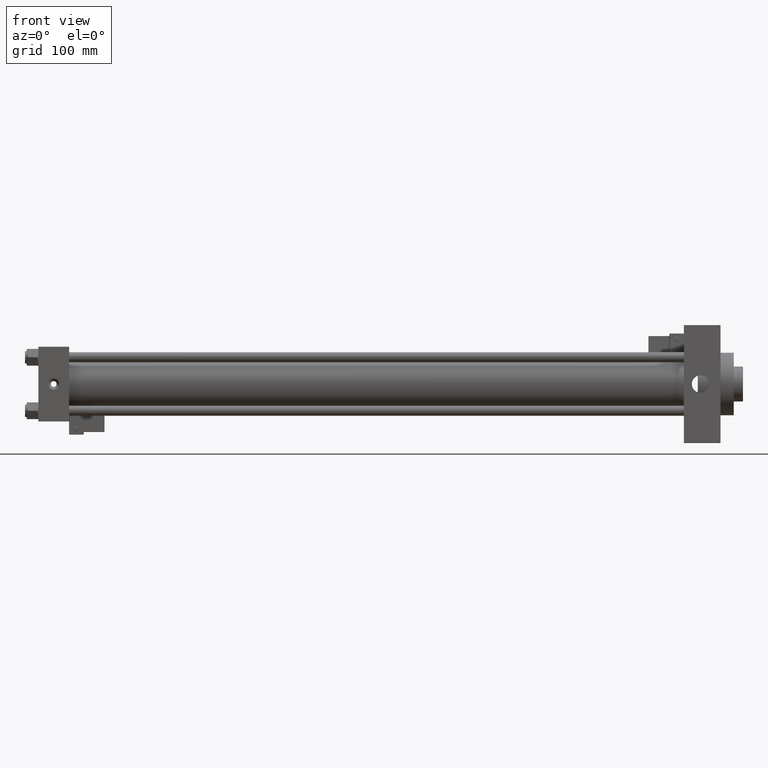
[diagram: clean part render]
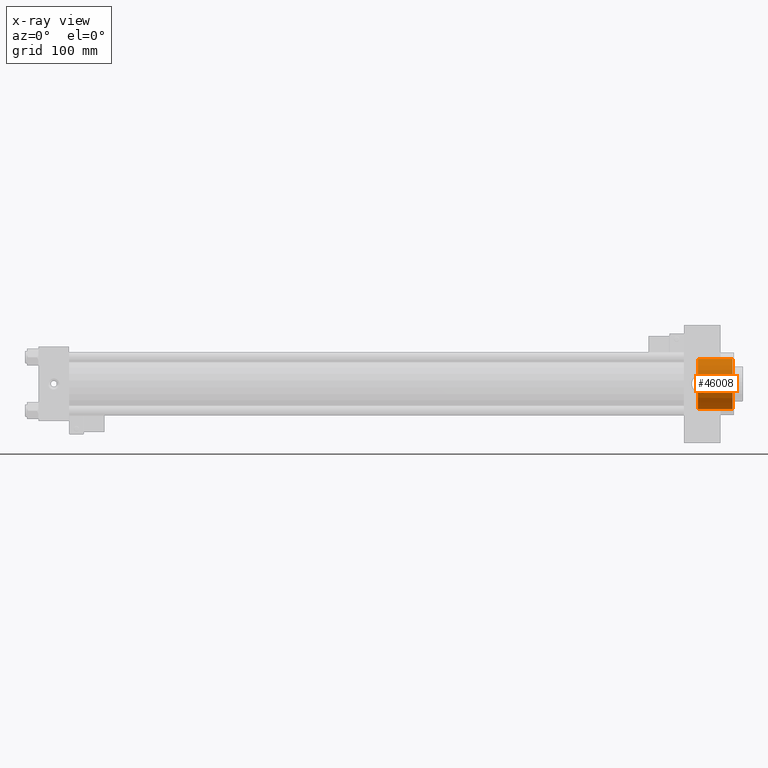
[diagram: x-ray — body ghosted, one internal face saturated and labeled with its STEP entity id]
A machine part, front view, then the same camera in x-ray: the body is ghosted and one INTERNAL B-rep face — a face not visible from any outside direction — is saturated and labeled: STEP entity #46008.
In plain terms, the highlighted cylindrical surface (edge-blend (fillet) strip) has radius 30 mm, axis along (1, 0, 0).
Its self-contained STEP definition (entity closure, byte-faithful):
#264 = CARTESIAN_POINT ( 'NONE',  ( 792.7400000000001228, -28.29836037653062775, 9.960060240781748675 ) ) ;
#589 = VERTEX_POINT ( 'NONE', #49616 ) ;
#917 = CARTESIAN_POINT ( 'NONE',  ( 794.8822926212899347, -28.10995553180400819, -10.48000000000005372 ) ) ;
#1570 = CARTESIAN_POINT ( 'NONE',  ( 792.7400000000001228, -28.29836037653063130, -9.960060240781743346 ) ) ;
#2111 = CARTESIAN_POINT ( 'NONE',  ( 796.6875923004627111, -28.11626763150321295, 10.46311650470943988 ) ) ;
#2248 = CIRCLE ( 'NONE', #14787, 30.00000000000000000 ) ;
#2876 = CARTESIAN_POINT ( 'NONE',  ( 801.2538723618133645, -28.59517209534080706, 9.074427182106752809 ) ) ;
#2941 = EDGE_CURVE ( 'NONE', #36929, #32891, #48526, .T. ) ;
#3135 = CARTESIAN_POINT ( 'NONE',  ( 802.9226840027822618, -28.94609101070396662, 7.897476117125417083 ) ) ;
#3151 = VERTEX_POINT ( 'NONE', #19456 ) ;
#3787 = EDGE_CURVE ( 'NONE', #36929, #32770, #10101, .T. ) ;
#4732 = CARTESIAN_POINT ( 'NONE',  ( 795.4514479423002058, -28.10995553180400819, 10.48000000000004661 ) ) ;
#5418 = CARTESIAN_POINT ( 'NONE',  ( 792.7400000000001228, 0.000000000000000000, 0.000000000000000000 ) ) ;
#5666 = EDGE_CURVE ( 'NONE', #32770, #589, #12850, .T. ) ;
#6562 = CARTESIAN_POINT ( 'NONE',  ( 800.6483450916582569, -28.49013521307114161, 9.399004808299611824 ) ) ;
#6808 = CARTESIAN_POINT ( 'NONE',  ( 804.5146658568487510, -29.37067223596217502, 6.119359129451043877 ) ) ;
#7060 = CARTESIAN_POINT ( 'NONE',  ( 806.1400674918413642, -29.88267782535193007, 2.735376480645566044 ) ) ;
#7320 = CARTESIAN_POINT ( 'NONE',  ( 797.3845237662673071, -28.13600843276155672, -10.41084356096760644 ) ) ;
#7849 = CARTESIAN_POINT ( 'NONE',  ( 796.0000000000000000, -28.10995553180400819, 10.48000000000004484 ) ) ;
#7971 = DIRECTION ( 'NONE',  ( 1.000000000000000000, -0.000000000000000000, -0.000000000000000000 ) ) ;
#8318 = ORIENTED_EDGE ( 'NONE', *, *, #50851, .T. ) ;
#8798 = CARTESIAN_POINT ( 'NONE',  ( 792.7400000000001228, -28.29836037653063130, -9.960060240781743346 ) ) ;
#9194 = CARTESIAN_POINT ( 'NONE',  ( 792.7400000000001228, 0.000000000000000000, -30.00000000000000000 ) ) ;
#9330 = CARTESIAN_POINT ( 'NONE',  ( 834.5000000000001137, 0.000000000000000000, 0.000000000000000000 ) ) ;
#10101 = CIRCLE ( 'NONE', #39407, 30.00000000000000000 ) ;
#10228 = CARTESIAN_POINT ( 'NONE',  ( 803.8917107446759474, -29.19304966441861637, -6.928961920144646847 ) ) ;
#10371 = ORIENTED_EDGE ( 'NONE', *, *, #18772, .F. ) ;
#10529 = EDGE_LOOP ( 'NONE', ( #10371, #50017, #47476, #30568, #12218, #38701, #21636, #8318 ) ) ;
#10736 = CARTESIAN_POINT ( 'NONE',  ( 806.2088621083211137, -29.90629404900236565, -2.393471372070398395 ) ) ;
#10984 = CARTESIAN_POINT ( 'NONE',  ( 805.9399912239312016, -29.81458687334005475, 3.392117035502160594 ) ) ;
#11067 = AXIS2_PLACEMENT_3D ( 'NONE', #17163, #33181, #20321 ) ;
#11312 = AXIS2_PLACEMENT_3D ( 'NONE', #9330, #33716, #25578 ) ;
#11886 = CARTESIAN_POINT ( 'NONE',  ( 792.7400000000001228, 3.673940397442059178E-15, 30.00000000000000000 ) ) ;
#12218 = ORIENTED_EDGE ( 'NONE', *, *, #3787, .F. ) ;
#12850 = LINE ( 'NONE', #9194, #33610 ) ;
#13010 = DIRECTION ( 'NONE',  ( 0.000000000000000000, 0.000000000000000000, -1.000000000000000000 ) ) ;
#13786 = VECTOR ( 'NONE', #7971, 1000.000000000000000 ) ;
#14152 = CARTESIAN_POINT ( 'NONE',  ( 799.7170611001099587, -28.35291915705128218, -9.804662585683500353 ) ) ;
#14403 = CARTESIAN_POINT ( 'NONE',  ( 806.4801199113429675, -30.00004188902683566, 0.3416054811791464640 ) ) ;
#14656 = CARTESIAN_POINT ( 'NONE',  ( 800.6664021070158697, -28.48775938261395524, -9.408788335372481271 ) ) ;
#14787 = AXIS2_PLACEMENT_3D ( 'NONE', #5418, #29027, #13010 ) ;
#14907 = CARTESIAN_POINT ( 'NONE',  ( 802.3950967947523623, -28.82709093977712556, -8.309601500369883098 ) ) ;
#15468 = EDGE_CURVE ( 'NONE', #51007, #19437, #47326, .T. ) ;
#16255 = EDGE_CURVE ( 'NONE', #19437, #589, #33946, .T. ) ;
#16901 = CARTESIAN_POINT ( 'NONE',  ( 796.0000000000000000, -28.10995553180401174, -10.48000000000004128 ) ) ;
#16913 = CYLINDRICAL_SURFACE ( 'NONE', #11067, 30.00000000000000000 ) ;
#17045 = DIRECTION ( 'NONE',  ( 1.000000000000000000, -0.000000000000000000, -0.000000000000000000 ) ) ;
#17163 = CARTESIAN_POINT ( 'NONE',  ( 792.7400000000001228, 0.000000000000000000, 0.000000000000000000 ) ) ;
#17451 = VERTEX_POINT ( 'NONE', #7849 ) ;
#18077 = CARTESIAN_POINT ( 'NONE',  ( 796.3438730021885021, -28.10995553180400464, 10.48000000000004306 ) ) ;
#18337 = CARTESIAN_POINT ( 'NONE',  ( 804.3114165177490804, -29.31220912400724643, 6.392798821075973414 ) ) ;
#18772 = EDGE_CURVE ( 'NONE', #51007, #3151, #2248, .T. ) ;
#18838 = CARTESIAN_POINT ( 'NONE',  ( 805.0902213596349384, -29.54095946462918221, -5.260287319037081133 ) ) ;
#19094 = CARTESIAN_POINT ( 'NONE',  ( 799.3905241761369780, -28.31178435317265141, -9.922416159315423201 ) ) ;
#19437 = VERTEX_POINT ( 'NONE', #21520 ) ;
#19456 = CARTESIAN_POINT ( 'NONE',  ( 792.7400000000001228, -28.29836037653062775, 9.960060240781748675 ) ) ;
#20118 = CARTESIAN_POINT ( 'NONE',  ( 796.0000000000000000, -28.10995553180401174, -10.48000000000004128 ) ) ;
#20321 = DIRECTION ( 'NONE',  ( 0.000000000000000000, 0.000000000000000000, -1.000000000000000000 ) ) ;
#20701 = CARTESIAN_POINT ( 'NONE',  ( 794.9024063244626177, -28.12603194202298695, 10.43719296280634090 ) ) ;
#21397 = DIRECTION ( 'NONE',  ( 1.000000000000000000, 0.000000000000000000, 0.000000000000000000 ) ) ;
#21520 = CARTESIAN_POINT ( 'NONE',  ( 834.5000000000001137, 3.673940397442059178E-15, 30.00000000000000000 ) ) ;
#21636 = ORIENTED_EDGE ( 'NONE', *, *, #29056, .T. ) ;
#22267 = CARTESIAN_POINT ( 'NONE',  ( 806.3429318193840345, -29.95232553474090409, 1.724057622897193109 ) ) ;
#22527 = CARTESIAN_POINT ( 'NONE',  ( 799.3944568409846170, -28.30729626029970802, 9.938490869674316386 ) ) ;
#22777 = CARTESIAN_POINT ( 'NONE',  ( 806.3942240619414861, -29.97012602456188901, 1.382554006488363685 ) ) ;
#23034 = CARTESIAN_POINT ( 'NONE',  ( 805.0829805892811919, -29.53877363973343861, 5.271871285478050062 ) ) ;
#24178 = B_SPLINE_CURVE_WITH_KNOTS ( 'NONE', 3,
 ( #25153, #4732, #20701, #36723, #36196, #264 ),
 .UNSPECIFIED., .F., .F.,
 ( 4, 2, 4 ),
 ( 0.03634970425994741433, 0.03799692195981778375, 0.03964413965968816012 ),
 .UNSPECIFIED. ) ;
#24775 = CARTESIAN_POINT ( 'NONE',  ( 793.7960088294358911, -28.17670708149322678, -10.30569959443393913 ) ) ;
#25153 = CARTESIAN_POINT ( 'NONE',  ( 796.0000000000000000, -28.10995553180400819, 10.48000000000004484 ) ) ;
#25578 = DIRECTION ( 'NONE',  ( 0.000000000000000000, 0.000000000000000000, -1.000000000000000000 ) ) ;
#26735 = CARTESIAN_POINT ( 'NONE',  ( 806.4630151315454896, -29.99405350600729747, 0.6904084209729872690 ) ) ;
#27241 = CARTESIAN_POINT ( 'NONE',  ( 798.7402809744362457, -28.23506111628059756, 10.13915124372667442 ) ) ;
#29027 = DIRECTION ( 'NONE',  ( 1.000000000000000000, 0.000000000000000000, 0.000000000000000000 ) ) ;
#29056 = EDGE_CURVE ( 'NONE', #32891, #17451, #33365, .T. ) ;
#30162 = CARTESIAN_POINT ( 'NONE',  ( 803.6452155958481853, -29.13013352623691077, 7.176134000890692199 ) ) ;
#30568 = ORIENTED_EDGE ( 'NONE', *, *, #5666, .F. ) ;
#30673 = CARTESIAN_POINT ( 'NONE',  ( 801.2662955552276571, -28.59360380551412462, -9.086475383822252283 ) ) ;
#30926 = CARTESIAN_POINT ( 'NONE',  ( 803.1731662640727336, -29.00983069254147040, -7.647933622233215267 ) ) ;
#31182 = CARTESIAN_POINT ( 'NONE',  ( 798.7290047839929912, -28.24020088778829773, -10.12435328880598640 ) ) ;
#32731 = CARTESIAN_POINT ( 'NONE',  ( 792.7400000000001228, 0.000000000000000000, 0.000000000000000000 ) ) ;
#32770 = VERTEX_POINT ( 'NONE', #42473 ) ;
#32891 = VERTEX_POINT ( 'NONE', #20118 ) ;
#33181 = DIRECTION ( 'NONE',  ( 1.000000000000000000, -0.000000000000000000, -0.000000000000000000 ) ) ;
#33365 = B_SPLINE_CURVE_WITH_KNOTS ( 'NONE', 3,
 ( #38797, #38546, #7320, #50629, #31182, #19094, #14152, #14656, #30673, #34101, #14907, #42494, #30926, #10228, #42995, #18838, #50127, #46690, #39049, #34360, #10736, #50374, #46942, #14403, #26735, #22777, #22267, #7060, #10984, #42744, #23034, #6808, #18337, #43257, #30162, #3135, #47199, #34859, #2876, #6562, #35121, #22527, #27241, #42244, #38031, #2111, #18077, #46174 ),
 .UNSPECIFIED., .F., .F.,
 ( 4, 2, 2, 2, 2, 2, 2, 2, 2, 2, 2, 2, 2, 2, 2, 2, 2, 2, 2, 2, 2, 2, 2, 4 ),
 ( 0.003306571874640958520, 0.005371767648722180523, 0.006404365535762791307, 0.007436963422803402959, 0.009502159196884928105, 0.01053475708392569155, 0.01156735497096645499, 0.01363255074504821258, 0.01569774651912997018, 0.01673034440617091403, 0.01776294229321185789, 0.01982813806729374212, 0.02086073595433468250, 0.02189333384137562288, 0.02395852961545751059, 0.02602372538953939482, 0.02705632327658033867, 0.02808892116362128599, 0.03015411693770317716, 0.03118671482474398571, 0.03221931271178479772, 0.03428450848586610950, 0.03531710637290676191, 0.03634970425994741433 ),
 .UNSPECIFIED. ) ;
#33610 = VECTOR ( 'NONE', #17045, 1000.000000000000000 ) ;
#33716 = DIRECTION ( 'NONE',  ( 1.000000000000000000, 0.000000000000000000, 0.000000000000000000 ) ) ;
#33946 = CIRCLE ( 'NONE', #11312, 30.00000000000000000 ) ;
#34101 = CARTESIAN_POINT ( 'NONE',  ( 802.1182821996172834, -28.76674563627387471, -8.515509313587616091 ) ) ;
#34360 = CARTESIAN_POINT ( 'NONE',  ( 806.1234663938196263, -29.87716762247597302, -2.732212426824515372 ) ) ;
#34859 = CARTESIAN_POINT ( 'NONE',  ( 801.5495707240802403, -28.65118564949815649, 8.896564878869986259 ) ) ;
#35121 = CARTESIAN_POINT ( 'NONE',  ( 800.3394417382620531, -28.44122229582505312, 9.545471696213226664 ) ) ;
#35612 = CARTESIAN_POINT ( 'NONE',  ( 792.7400000000001228, 3.673940397442059178E-15, 30.00000000000000000 ) ) ;
#36196 = CARTESIAN_POINT ( 'NONE',  ( 793.2662976595623832, -28.23773034894798428, 10.13232128425893208 ) ) ;
#36723 = CARTESIAN_POINT ( 'NONE',  ( 793.8039147237727775, -28.19027760536561544, 10.26240314346366134 ) ) ;
#36929 = VERTEX_POINT ( 'NONE', #1570 ) ;
#38031 = CARTESIAN_POINT ( 'NONE',  ( 797.3747204287126351, -28.14145658298055253, 10.39517839700976864 ) ) ;
#38546 = CARTESIAN_POINT ( 'NONE',  ( 796.6980899380639585, -28.10995553180402240, -10.48000000000003595 ) ) ;
#38701 = ORIENTED_EDGE ( 'NONE', *, *, #2941, .T. ) ;
#38797 = CARTESIAN_POINT ( 'NONE',  ( 796.0000000000000000, -28.10995553180401174, -10.48000000000004128 ) ) ;
#39049 = CARTESIAN_POINT ( 'NONE',  ( 805.9217316417467600, -29.80941683571757395, -3.392461908593648268 ) ) ;
#39407 = AXIS2_PLACEMENT_3D ( 'NONE', #32731, #21397, #41112 ) ;
#41059 = FACE_OUTER_BOUND ( 'NONE', #10529, .T. ) ;
#41112 = DIRECTION ( 'NONE',  ( 0.000000000000000000, 0.000000000000000000, -1.000000000000000000 ) ) ;
#42244 = CARTESIAN_POINT ( 'NONE',  ( 797.7201323274241531, -28.16049430193227110, 10.34368535468167849 ) ) ;
#42473 = CARTESIAN_POINT ( 'NONE',  ( 792.7400000000001228, 0.000000000000000000, -30.00000000000000000 ) ) ;
#42494 = CARTESIAN_POINT ( 'NONE',  ( 802.9218863494080551, -28.94851325491608307, -7.876181147934422810 ) ) ;
#42744 = CARTESIAN_POINT ( 'NONE',  ( 805.4072711420143378, -29.64123673593072184, 4.670453208736303097 ) ) ;
#42995 = CARTESIAN_POINT ( 'NONE',  ( 804.3253861848220367, -29.31464168039806140, -6.402397357205718009 ) ) ;
#43257 = CARTESIAN_POINT ( 'NONE',  ( 803.8766334625355512, -29.19190493786176432, 6.921428074835848321 ) ) ;
#46008 = ADVANCED_FACE ( 'NONE', ( #41059 ), #16913, .F. ) ;
#46174 = CARTESIAN_POINT ( 'NONE',  ( 796.0000000000000000, -28.10995553180400819, 10.48000000000004484 ) ) ;
#46690 = CARTESIAN_POINT ( 'NONE',  ( 805.8054432238870959, -29.77080659644962068, -3.714849565276037602 ) ) ;
#46942 = CARTESIAN_POINT ( 'NONE',  ( 806.4797582609247684, -29.99991555248753627, -0.6941883290317009125 ) ) ;
#47199 = CARTESIAN_POINT ( 'NONE',  ( 802.3991954878802062, -28.82380471925721466, 8.327394824909795545 ) ) ;
#47326 = LINE ( 'NONE', #11886, #13786 ) ;
#47476 = ORIENTED_EDGE ( 'NONE', *, *, #16255, .T. ) ;
#48526 = B_SPLINE_CURVE_WITH_KNOTS ( 'NONE', 3,
 ( #8798, #24775, #917, #16901 ),
 .UNSPECIFIED., .F., .F.,
 ( 4, 4 ),
 ( 0.000000000000000000, 0.003306571874640958520 ),
 .UNSPECIFIED. ) ;
#49616 = CARTESIAN_POINT ( 'NONE',  ( 834.5000000000001137, 0.000000000000000000, -30.00000000000000000 ) ) ;
#50017 = ORIENTED_EDGE ( 'NONE', *, *, #15468, .T. ) ;
#50127 = CARTESIAN_POINT ( 'NONE',  ( 805.4118318432558681, -29.64271601913477738, -4.659776581799520478 ) ) ;
#50374 = CARTESIAN_POINT ( 'NONE',  ( 806.4119334145254925, -29.97602025324989583, -1.377942522026807115 ) ) ;
#50629 = CARTESIAN_POINT ( 'NONE',  ( 798.3951681404155352, -28.20981294759198477, -10.20840888712406169 ) ) ;
#50851 = EDGE_CURVE ( 'NONE', #17451, #3151, #24178, .T. ) ;
#51007 = VERTEX_POINT ( 'NONE', #35612 ) ;